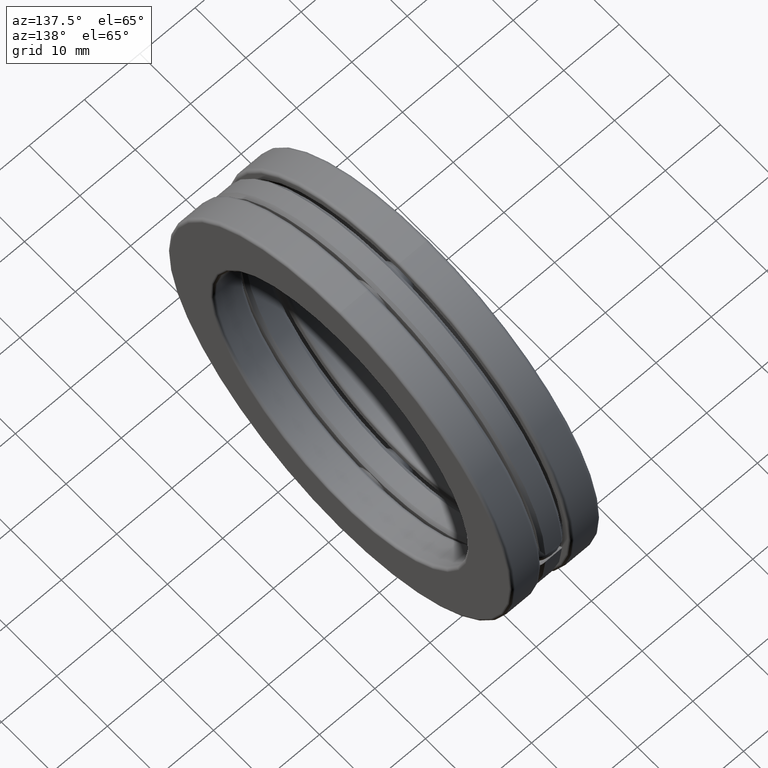
[diagram: clean part render]
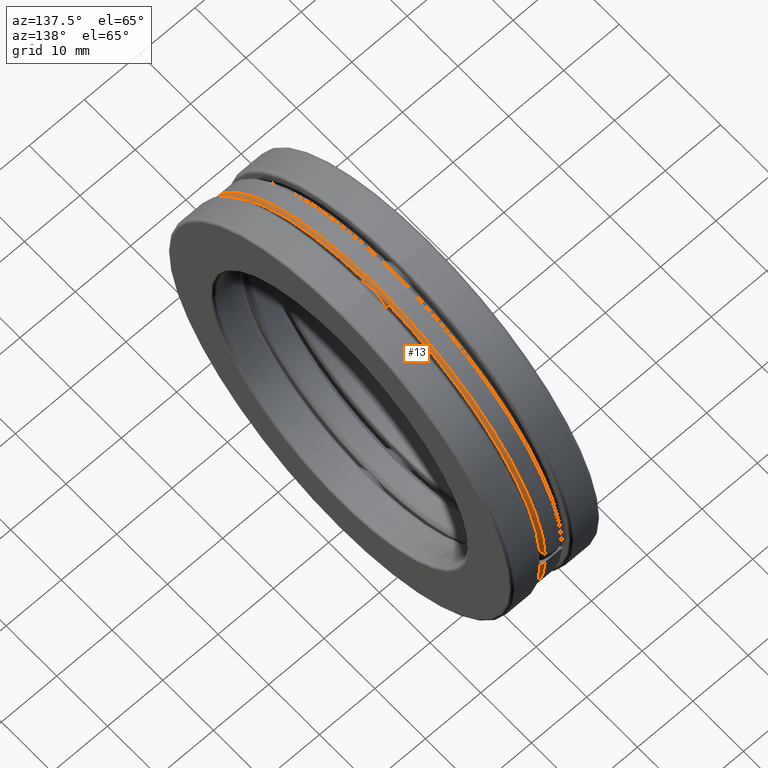
[diagram: same view with one face highlighted and labeled with its STEP entity id]
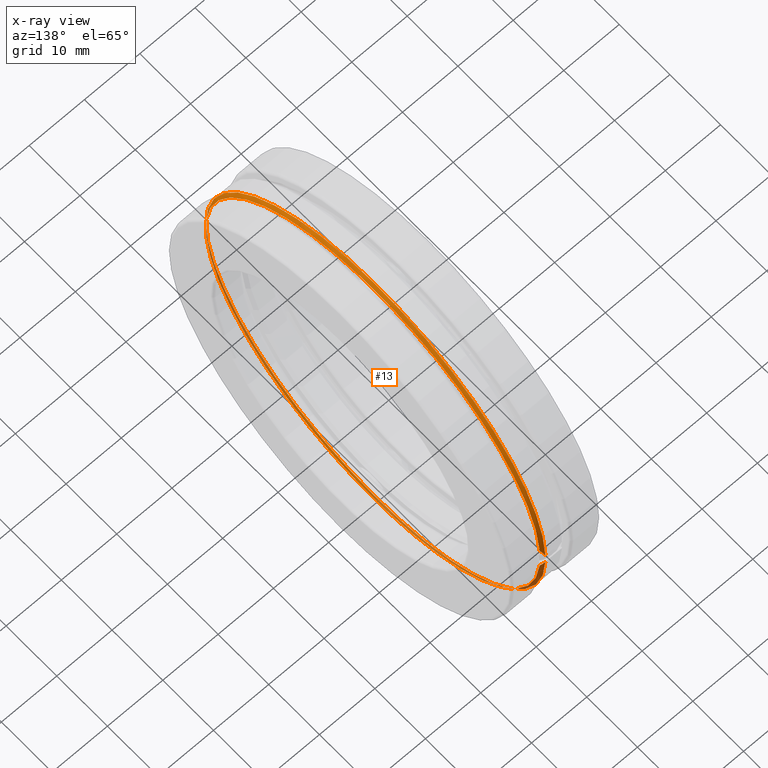
[diagram: x-ray of the same camera — body ghosted, the highlighted face saturated]
A machine part, auxiliary view. The second image highlights one B-rep face of the part: STEP entity #13.
The next image is the same camera in x-ray: the body ghosted, the highlighted face saturated — about 19% of this face is hidden behind the body in this view.
In plain terms, the highlighted conical surface has half-angle 45 deg.
Its self-contained STEP definition (entity closure, byte-faithful):
#5 = CIRCLE ( 'NONE', #414, 1.298499999999999800 ) ;
#13 = ADVANCED_FACE ( 'NONE', ( #709 ), #149, .T. ) ;
#14 = ORIENTED_EDGE ( 'NONE', *, *, #266, .T. ) ;
#44 = CARTESIAN_POINT ( 'NONE',  ( 0.05874999999999998300, 0.0000000000000000000, 0.0000000000000000000 ) ) ;
#54 = CARTESIAN_POINT ( 'NONE',  ( 0.06360343731708327500, 1.312448222807910400, 0.05677274641215771700 ) ) ;
#58 = CARTESIAN_POINT ( 'NONE',  ( 0.05874999999999998300, 1.317952432199741600, -0.03799521626185624300 ) ) ;
#62 = CARTESIAN_POINT ( 'NONE',  ( 0.05874999999999998300, 1.317952432199741600, -0.03799521626185624300 ) ) ;
#76 = B_SPLINE_CURVE_WITH_KNOTS ( 'NONE', 3,
 ( #488, #366, #436, #54, #302, #311 ),
 .UNSPECIFIED., .F., .F.,
 ( 4, 2, 4 ),
 ( 4.440555414821110800E-007, 0.0007574820016740763200, 0.001514519947806670400 ),
 .UNSPECIFIED. ) ;
#80 = DIRECTION ( 'NONE',  ( -1.000000000000000000, -0.0000000000000000000, -0.0000000000000000000 ) ) ;
#93 = EDGE_LOOP ( 'NONE', ( #241, #658, #14, #205 ) ) ;
#129 = CARTESIAN_POINT ( 'NONE',  ( 0.07027382158361213100, 1.304923247158528100, -0.07374496623166407200 ) ) ;
#149 = CONICAL_SURFACE ( 'NONE', #729, 1.318499999999999800, 0.7853981633974498300 ) ;
#158 = VERTEX_POINT ( 'NONE', #353 ) ;
#192 = CARTESIAN_POINT ( 'NONE',  ( 0.07427093626631646500, 1.300428596003605900, -0.08186103324463722700 ) ) ;
#205 = ORIENTED_EDGE ( 'NONE', *, *, #279, .F. ) ;
#241 = ORIENTED_EDGE ( 'NONE', *, *, #527, .T. ) ;
#266 = EDGE_CURVE ( 'NONE', #490, #615, #76, .T. ) ;
#267 = DIRECTION ( 'NONE',  ( 0.0000000000000000000, 0.0000000000000000000, 1.000000000000000000 ) ) ;
#279 = EDGE_CURVE ( 'NONE', #571, #615, #413, .T. ) ;
#302 = CARTESIAN_POINT ( 'NONE',  ( 0.06080196196124219900, 1.315623106460699100, 0.04758665205595959100 ) ) ;
#311 = CARTESIAN_POINT ( 'NONE',  ( 0.05874999999999998300, 1.317952432199741600, 0.03799521626185624300 ) ) ;
#316 = CARTESIAN_POINT ( 'NONE',  ( 0.07875000000000000100, 1.295421222557038100, -0.08936501635891165600 ) ) ;
#353 = CARTESIAN_POINT ( 'NONE',  ( 0.07875000000000000100, 1.295421222557038100, -0.08936501635891165600 ) ) ;
#366 = CARTESIAN_POINT ( 'NONE',  ( 0.07427570226872157200, 1.300423267846805500, 0.08186901794940994200 ) ) ;
#413 = CIRCLE ( 'NONE', #715, 1.318499999999999800 ) ;
#414 = AXIS2_PLACEMENT_3D ( 'NONE', #705, #80, #782 ) ;
#424 = DIRECTION ( 'NONE',  ( 0.0000000000000000000, 0.0000000000000000000, 1.000000000000000000 ) ) ;
#436 = CARTESIAN_POINT ( 'NONE',  ( 0.07033249843032801700, 1.304857204409491000, 0.07387301704913103200 ) ) ;
#450 = CARTESIAN_POINT ( 'NONE',  ( 0.05874999999999998300, 1.317952432199741600, 0.03799521626185624300 ) ) ;
#488 = CARTESIAN_POINT ( 'NONE',  ( 0.07875000000000000100, 1.295421222557038100, 0.08936501635891165600 ) ) ;
#490 = VERTEX_POINT ( 'NONE', #556 ) ;
#499 = CARTESIAN_POINT ( 'NONE',  ( 0.06080408991687605300, 1.315620690869219400, -0.04759659870712583400 ) ) ;
#527 = EDGE_CURVE ( 'NONE', #571, #158, #706, .T. ) ;
#556 = CARTESIAN_POINT ( 'NONE',  ( 0.07875000000000000100, 1.295421222557038100, 0.08936501635891165600 ) ) ;
#571 = VERTEX_POINT ( 'NONE', #58 ) ;
#615 = VERTEX_POINT ( 'NONE', #450 ) ;
#636 = DIRECTION ( 'NONE',  ( -1.000000000000000000, -0.0000000000000000000, -0.0000000000000000000 ) ) ;
#658 = ORIENTED_EDGE ( 'NONE', *, *, #682, .T. ) ;
#682 = EDGE_CURVE ( 'NONE', #158, #490, #5, .T. ) ;
#694 = CARTESIAN_POINT ( 'NONE',  ( 0.05874999999999998300, 0.0000000000000000000, 0.0000000000000000000 ) ) ;
#705 = CARTESIAN_POINT ( 'NONE',  ( 0.07874999999999997300, 0.0000000000000000000, 0.0000000000000000000 ) ) ;
#706 = B_SPLINE_CURVE_WITH_KNOTS ( 'NONE', 3,
 ( #62, #499, #815, #129, #192, #316 ),
 .UNSPECIFIED., .F., .F.,
 ( 4, 2, 4 ),
 ( 9.674598786240180600E-007, 0.0007577762301935912300, 0.001514585000508558400 ),
 .UNSPECIFIED. ) ;
#709 = FACE_OUTER_BOUND ( 'NONE', #93, .T. ) ;
#715 = AXIS2_PLACEMENT_3D ( 'NONE', #44, #821, #424 ) ;
#729 = AXIS2_PLACEMENT_3D ( 'NONE', #694, #636, #267 ) ;
#782 = DIRECTION ( 'NONE',  ( 0.0000000000000000000, 0.0000000000000000000, 1.000000000000000000 ) ) ;
#815 = CARTESIAN_POINT ( 'NONE',  ( 0.06355733481009628900, 1.312500383458935700, -0.05663419519389228200 ) ) ;
#821 = DIRECTION ( 'NONE',  ( -1.000000000000000000, -0.0000000000000000000, -0.0000000000000000000 ) ) ;